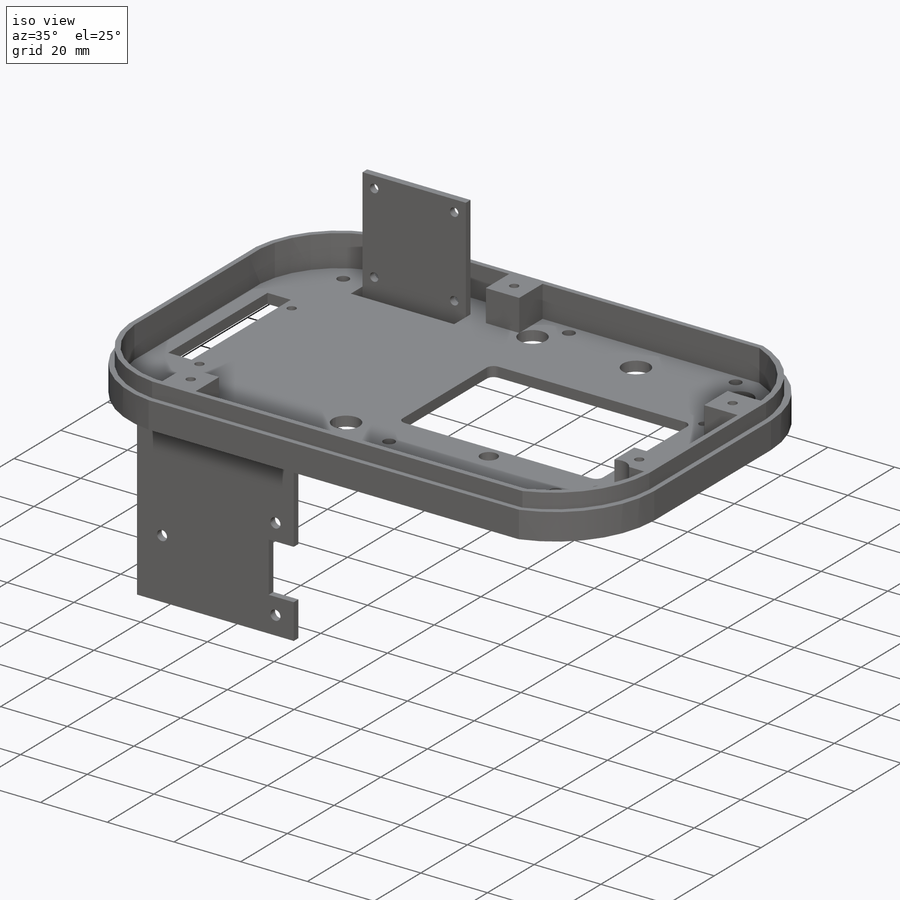
[diagram: iso view]
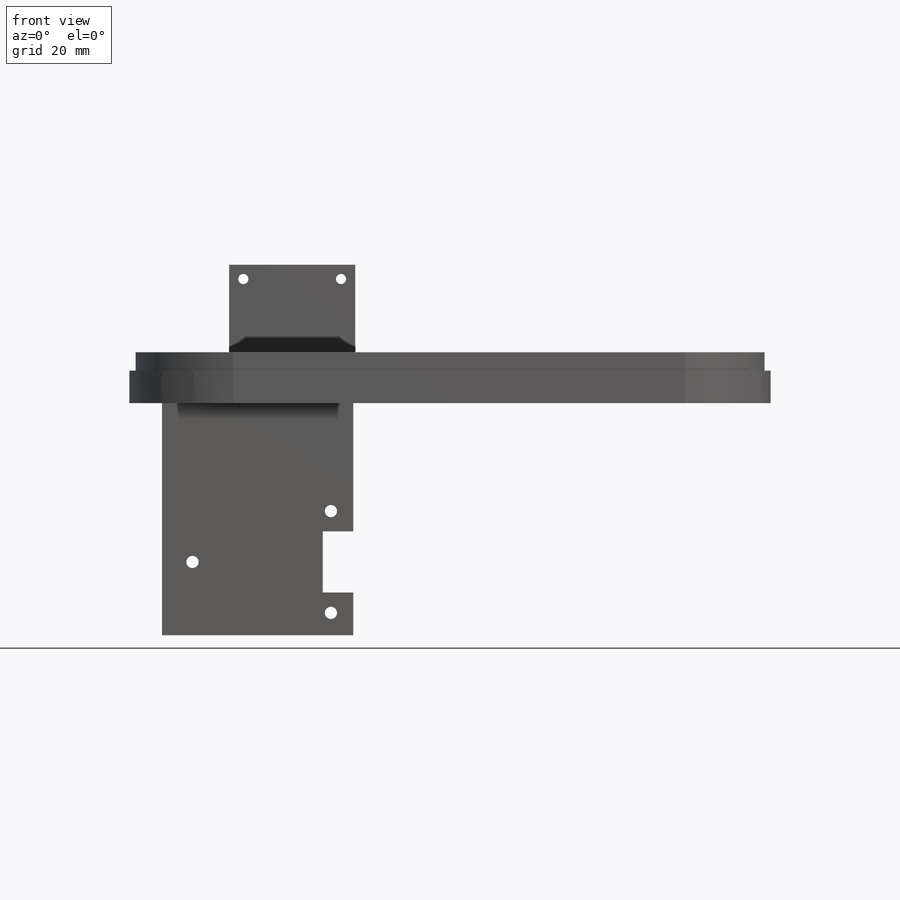
[diagram: front view]
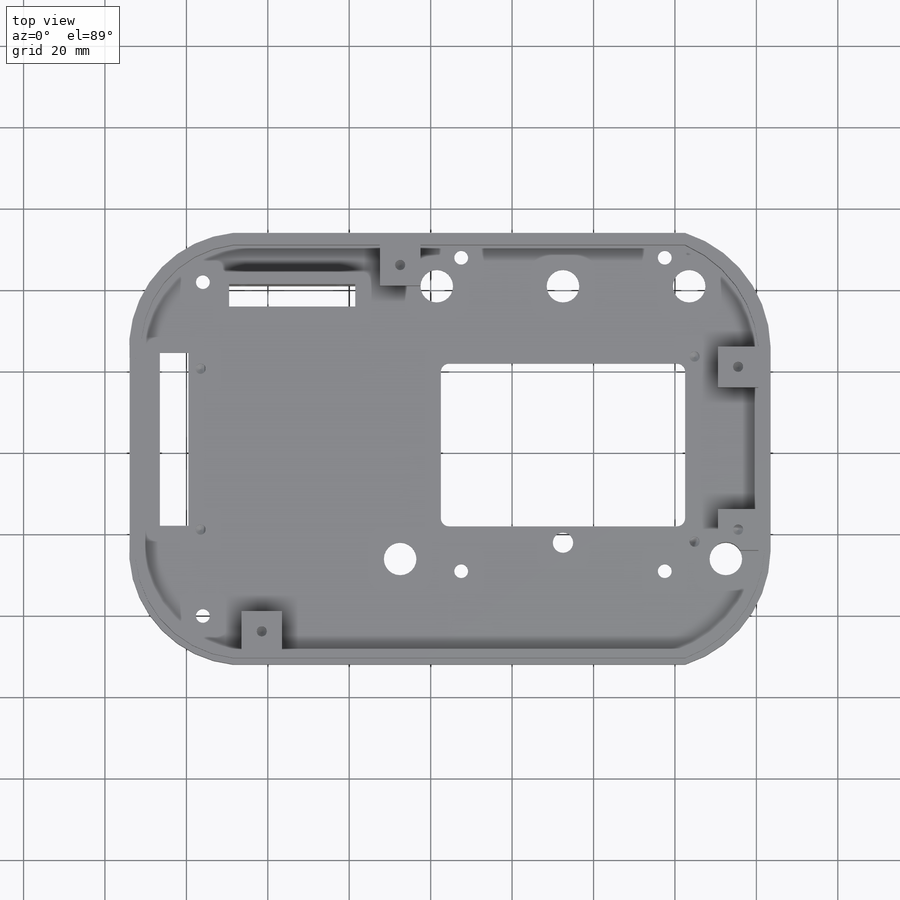
[diagram: top view]
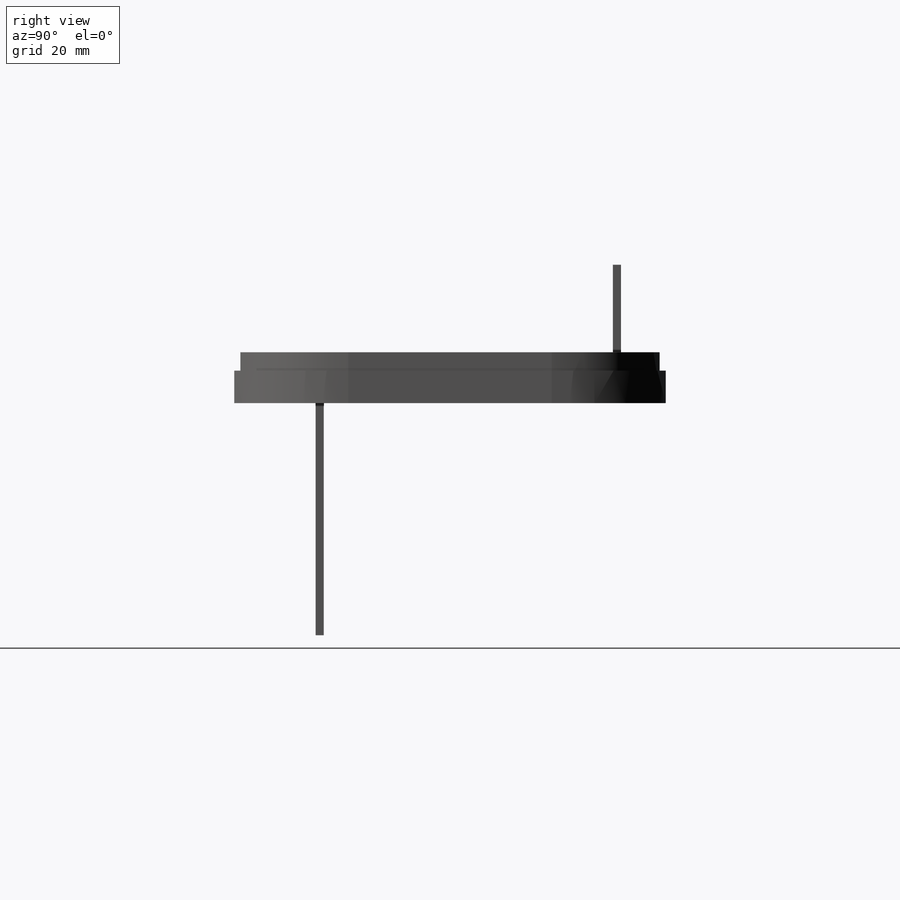
[diagram: right view]
SOLIDWORKS PART (.sldprt)
format: sldprt  version: not decoded by parser v0  size: 1,694,720 bytes
history: native  units: mm
features: sketch x65, extrude x22, cut_extrude x20, hole x10, plane x2, material x1, fillet x1 (+12 scaffold rows collapsed)
feature tree (133):
  scaffold x12  (default folders/planes/origin — collapsed)
  material  "Material <not specified>"
  sketch  "Sketch1"  dims[D1=106.0mm D2=207.0mm]
  extrude  "Boss-Extrude1"  Depth=86.5mm
  sketch  "Sketch2"  dims[D1=3.0mm D2=3.0mm D3=207.0mm]
  cut_extrude  "Cut-Extrude1"  Depth=35mm
  sketch  "Sketch4"  dims[D1=154.0mm D2=70.0mm]
  cut_extrude  "Cut-Extrude2"  Depth=49.5mm
  sketch  "Sketch8"  dims[D1=0.0mm D2=0.0mm D3=0.0mm D4=60.0mm]
  cut_extrude  "Cut-Extrude3"  Depth=48.5mm
  sketch  "Sketch11"  dims[D1=5.0mm]
  cut_extrude  "Cut-Extrude4"  Depth=49.5mm
  sketch  "Sketch12"  dims[D1=20.0mm D2=3.0mm D3=3.0mm D4=3.0mm]
  cut_extrude  "Cut-Extrude5"  Depth=3mm
  sketch  "Sketch19"  dims[D1=1.5mm D2=1.5mm D3=1.5mm D4=1.5mm]
  cut_extrude  "Cut-Extrude10"  Depth=30mm
  sketch  "Sketch20"
  cut_extrude  "Cut-Extrude11"  Depth=25.5mm
  sketch  "Sketch24"  dims[D1=10.0mm D2=10.0mm D3=25.0mm]
  extrude  "Boss-Extrude4"  Depth=9.5mm
  sketch  "Sketch27"  dims[D1=10.0mm D2=10.0mm D3=25.0mm]
  extrude  "Boss-Extrude6"  Depth=9.5mm
  plane  "Plane24"  Offset=39.5mm
  plane  "Plane25"  Offset=9mm
  sketch  "Sketch53"  dims[D1=60.0mm D2=40.0mm D3=49.0mm D4=48.0mm]
  cut_extrude  "Cut-Extrude20"  [1 undecoded]
  fillet  "Fillet2"  Radius=2mm
  hole  "M3 Clearance Hole1"  Diameter=3.4mm Depth=12.5mm
  sketch  "3DSketch7"  dims[c1.D1=11.0mm c1.D2=5.0mm c1.D3=11.0mm c1.D4=~10.458183mm c1.D5=5.5mm c2.D4=5.0mm c2.D5=50.0mm c2.D6=5.0mm c2.D7=5.0mm c2.D8=26.0mm c2.D9=26.0mm c2.D10=77.0mm c2.D11=77.0mm c2.D12=77.0mm c3.D11=50.0mm c3.D12=50.0mm]
  sketch  "Sketch54"  dims[hole-wizard template sketch: 60 standard entries collapsed; hole parameters kept: c18.Thru Hole Depth=12.5mm]
  sketch  "Sketch66"  dims[D1=0.0mm D2=0.0mm D3=21.0mm D4=28.0mm]
  cut_extrude  "Cut-Extrude25"  [1 undecoded]
  sketch  "Sketch68"  dims[D1=30.0mm D2=3.0mm]
  extrude  "Boss-Extrude7"  [1 undecoded]
  sketch  "Sketch69"  dims[D1=30.0mm D2=1.5mm]
  extrude  "Boss-Extrude8"  [1 undecoded]
  sketch  "Sketch70"  dims[D1=1.5mm]
  extrude  "Boss-Extrude9"  [1 undecoded]
  sketch  "Sketch71"  dims[D1=0.0mm D2=10.0mm D3=3.0mm D4=21.0mm D5=28.0mm]
  cut_extrude  "Cut-Extrude26"  [1 undecoded]
  sketch  "Sketch72"  dims[D1=30.0mm]
  extrude  "Boss-Extrude10"  [1 undecoded]
  sketch  "Sketch73"  dims[D1=30.0mm D2=1.5mm]
  extrude  "Boss-Extrude11"  [1 undecoded]
  sketch  "Sketch74"  dims[D1=1.5mm D2=1.5mm D3=1.5mm]
  extrude  "Boss-Extrude12"  [1 undecoded]
  sketch  "Sketch76"  dims[D1=15.0mm D2=55.0mm]
  cut_extrude  "Cut-Extrude28"  [1 undecoded]
  sketch  "Sketch85"  dims[c1.D1=103.0mm c1.D2=20.0mm c2.D1=5.0mm]
  extrude  "Boss-Extrude16"  [1 undecoded]
  sketch  "Sketch95"  dims[D1=3.0mm]
  extrude  "Boss-Extrude19"  [1 undecoded]
  sketch  "Sketch96"
  cut_extrude  "Cut-Extrude31"  [1 undecoded]
  sketch  "Sketch102"  dims[D1=10.0mm D2=10.0mm D3=10.0mm]
  extrude  "Boss-Extrude22"  [1 undecoded]
  sketch  "Sketch108"  dims[D1=~60.521321mm D2=~60.521321mm]
  cut_extrude  "Cut-Extrude33"  Depth=119.3mm
  hole  "M3x0.5 Tapped Hole6"  Diameter=2.5mm Depth=2mm
  sketch  "3DSketch11"  dims[D1=27.2mm D2=45.5mm D3=5.68mm D4=5.68mm]
  sketch  "Sketch110"  dims[hole-wizard template sketch: 47 standard entries collapsed; hole parameters kept: c15.Tap Drill Depth=2.0mm c15.D3=~14.816244mm c15.Drill Angle=118.0deg]
  sketch  "Sketch118"  dims[D1=20.5mm]
  sketch  "Sketch121"  dims[D1=28.0mm D2=44.0mm D3=10.5mm]
  extrude  "Boss-Extrude26"  [1 undecoded]
  sketch  "Sketch122"  dims[D1=~60.656553mm]
  sketch  "Sketch123"  dims[c1.D1=10.0mm c1.D2=10.0mm c1.D3=10.0mm c2.D1=0.0mm]
  extrude  "Boss-Extrude28"  [1 undecoded]
  sketch  "Sketch128"
  cut_extrude  "Cut-Extrude39"  Depth=22mm
  sketch  "Sketch129"
  cut_extrude  "Cut-Extrude40"  Depth=26mm
  sketch  "Sketch130"
  extrude  "Boss-Extrude29"  [1 undecoded]
  sketch  "Sketch131"
  extrude  "Boss-Extrude30"  [1 undecoded]
  hole  "M3x0.5 Tapped Hole8"  Diameter=2.5mm Depth=2mm
  sketch  "3DSketch13"  dims[D1=59.01mm D2=59.01mm D3=30.2mm D4=39.5mm]
  sketch  "Sketch133"  dims[hole-wizard template sketch: 47 standard entries collapsed; hole parameters kept: c15.Tap Drill Depth=2.0mm c15.D3=~14.816244mm c15.Drill Angle=118.0deg]
  sketch  "Sketch134"  dims[D1=5.0mm D2=10.0mm D3=10.0mm D4=5.0mm D5=10.0mm D6=10.0mm]
  extrude  "Boss-Extrude31"  [1 undecoded]
  sketch  "Sketch135"  dims[D1=3.0mm D2=3.0mm D3=0.0mm D4=1.5mm]
  extrude  "Boss-Extrude33"  [1 undecoded]
  sketch  "Sketch139"
  extrude  "Boss-Extrude35"  [1 undecoded]
  sketch  "Sketch140"
  cut_extrude  "Cut-Extrude41"  [1 undecoded]
  sketch  "Sketch142"  dims[D1=5.0mm D2=10.0mm D3=10.0mm D4=39.0mm D5=10.0mm D6=10.0mm]
  extrude  "Boss-Extrude37"  [1 undecoded]
  sketch  "Sketch143"  dims[c1.D1=2.5mm c1.D2=47.0mm c1.D3=2.0mm c2.D1=20.0mm c2.D4=26.5mm]
  extrude  "Boss-Extrude38"  Depth=57mm
  sketch  "Sketch144"  dims[D1=25.0mm D2=2.0mm]
  sketch  "Sketch145"  dims[D1=7.0mm D2=8.0mm D3=2.0mm D4=31.0mm]
  extrude  "Boss-Extrude40"  Depth=31mm
  hole  "Ø2.5mm Dowel Hole1"  Diameter=2.5mm Depth=4mm
  sketch  "3DSketch14"  dims[D1=3.5mm D2=3.5mm D3=3.5mm D4=24.0mm D5=3.5mm D6=24.0mm D7=24.0mm D8=24.0mm]
  sketch  "Sketch147"  dims[hole-wizard template sketch: 49 standard entries collapsed; hole parameters kept: c15.Drill Angle=118.0deg]
  sketch  "Sketch148"  dims[D1=5.0mm D2=0.0mm]
  cut_extrude  "Cut-Extrude42"  Depth=31mm
  hole  "Ø3.0mm Dowel Hole1"  Diameter=3mm Depth=4mm
  sketch  "3DSketch15"  dims[D1=5.5mm D2=5.5mm D3=5.5mm D4=25.0mm D5=39.5mm D6=18.0mm]
  sketch  "Sketch155"  dims[hole-wizard template sketch: 47 standard entries collapsed; hole parameters kept: c15.Hole Depth=4.0mm c15.D3=~14.816244mm c15.Drill Angle=118.0deg]
  sketch  "Sketch156"  dims[D1=7.5mm D2=5.0mm D3=5.0mm]
  cut_extrude  "Cut-Extrude43"  Depth=57mm
  hole  "M3x0.5 Tapped Hole9"  Diameter=2.5mm Depth=2mm
  sketch  "3DSketch16"  dims[D1=5.0mm D2=5.0mm D3=5.0mm D4=5.0mm D5=5.0mm D6=5.0mm D7=5.0mm D8=5.0mm]
  sketch  "Sketch157"  dims[hole-wizard template sketch: 47 standard entries collapsed; hole parameters kept: c15.Tap Drill Depth=2.0mm c15.D3=~14.816244mm c15.Drill Angle=118.0deg]
  sketch  "Sketch158"  dims[c1.D1=3.0mm c1.D2=~6.189974mm c2.D2=90.0deg c3.D2=7.0mm]
  cut_extrude  "Cut-Extrude44"  Depth=57mm
  hole  "M3 Clearance Hole2"  Diameter=3.4mm Depth=60mm
  sketch  "3DSketch17"  dims[c1.D1=~11.29106mm c1.D2=~19.406161mm c1.D5=18.0mm c1.D3=~14.348125mm c2.D5=12.0mm c2.D4=~17.888891mm c2.D3=15.0mm c3.D4=9.0mm c3.D1=15.0mm c3.D2=9.0mm]
  sketch  "Sketch159"  dims[hole-wizard template sketch: 60 standard entries collapsed; hole parameters kept: c18.Thru Hole Depth=60.0mm]
  hole  "Ø8.0mm Dowel Hole1"  Diameter=8mm Depth=60mm
  sketch  "3DSketch18"  dims[D1=19.0mm D2=1.0mm D3=19.0mm D4=31.0mm D5=19.0mm D6=1.0mm D7=31.0mm]
  sketch  "Sketch161"  dims[hole-wizard template sketch: 60 standard entries collapsed; hole parameters kept: c18.Thru Hole Depth=60.0mm]
  hole  "Ø8.0mm Dowel Hole2"  Diameter=8mm Depth=60mm
  sketch  "3DSketch19"  dims[D1=48.0mm D2=10.0mm D3=10.0mm D4=48.0mm]
  sketch  "Sketch162"  dims[hole-wizard template sketch: 60 standard entries collapsed; hole parameters kept: c18.Thru Hole Depth=60.0mm]
  sketch  "Sketch165"  dims[D1=10.0mm]
  cut_extrude  "Cut-Extrude45"  Depth=10mm
  hole  "Ø5.0mm Dowel Hole1"  Diameter=5mm Depth=12.5mm
  sketch  "3DSketch21"  dims[D1=44.0mm D2=30.0mm]
  sketch  "Sketch166"  dims[hole-wizard template sketch: 47 standard entries collapsed; hole parameters kept: c15.Hole Depth=12.5mm c15.D3=~14.816244mm c15.Drill Angle=118.0deg]
decode coverage: 87 of 118 modeling features carry decoded parameters
note: ~ marks probable driven/reference dimensions
note: 23 parameter values undecoded
summary: no parameter record found for 23 features; Diameter pulled from absorbed wizard sketch
note: suppression state not decoded; provenance and decode notes live in map.json
